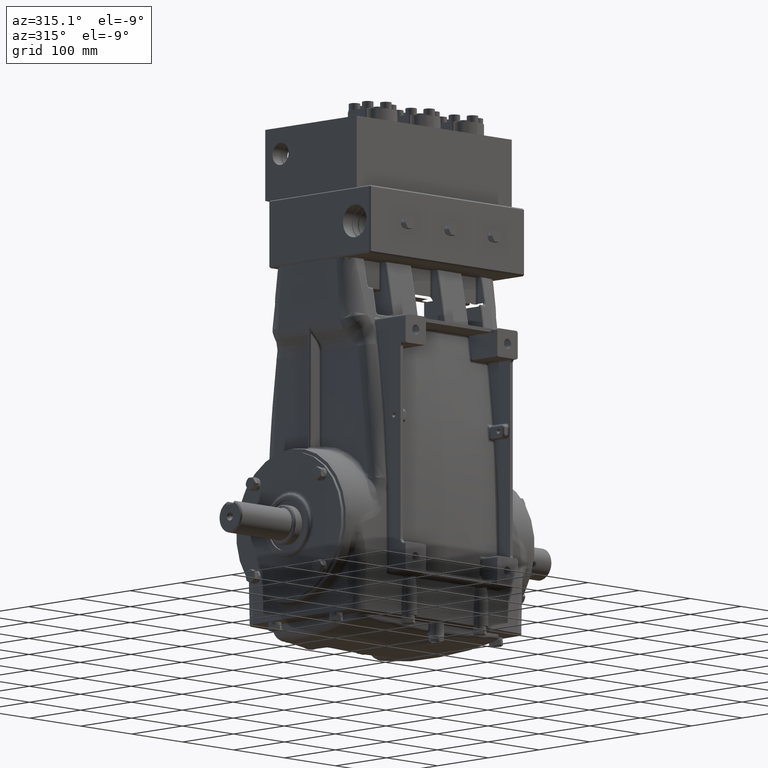
[diagram: clean part render]
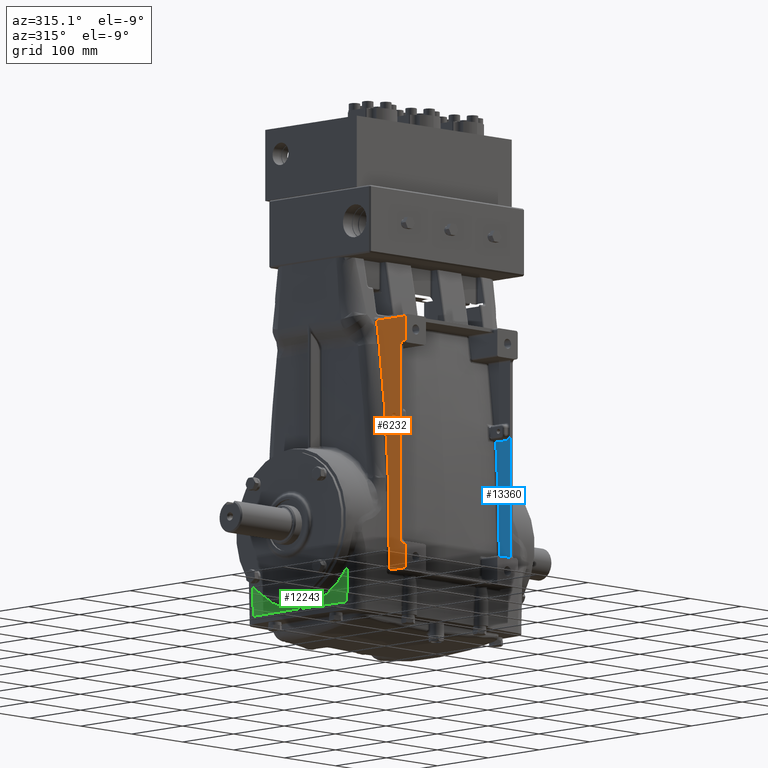
[diagram: same view with three faces highlighted in distinct colors, each labeled with its STEP entity id]
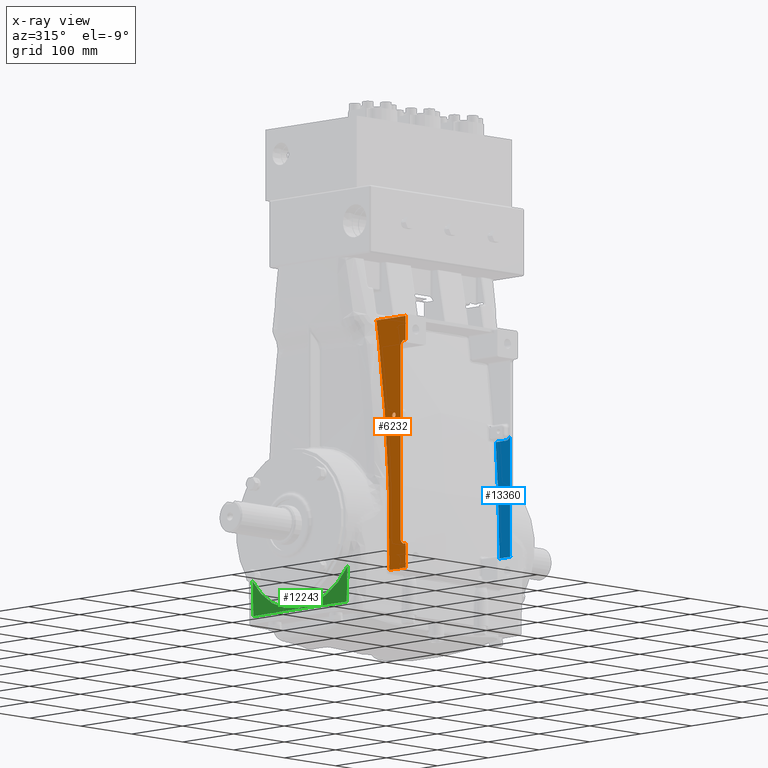
[diagram: x-ray of the same camera — body ghosted, the three highlighted faces saturated]
A machine part, auxiliary view with three faces highlighted in distinct colors.
The next image is the same camera in x-ray (body ghosted, the three faces saturated) — at least one of them is partly hidden behind the body in this view.
Their STEP definitions:

[orange] entity #6232 — the highlighted planar face has unit normal (1, 0, -0).
#286 = CARTESIAN_POINT ( 'NONE',  ( -4.330708661417315142, -3.758670633339183720, 10.58997371581670244 ) ) ;
#506 = CARTESIAN_POINT ( 'NONE',  ( -4.330708661417320471, -5.511811023622048111, 9.684108474770964037 ) ) ;
#572 = CARTESIAN_POINT ( 'NONE',  ( -4.330708661417322247, -4.597700456621135245, 1.727972093343288496 ) ) ;
#815 = CARTESIAN_POINT ( 'NONE',  ( -4.330708661417318694, -5.708661417322118403, 9.960629921259842590 ) ) ;
#1033 = DIRECTION ( 'NONE',  ( 4.625929269271485914E-16, -0.000000000000000000, 1.000000000000000000 ) ) ;
#1430 = VECTOR ( 'NONE', #66259, 39.37007874015748143 ) ;
#1734 = VERTEX_POINT ( 'NONE', #48448 ) ;
#1758 = EDGE_CURVE ( 'NONE', #16277, #56639, #74846, .T. ) ;
#1809 = CARTESIAN_POINT ( 'NONE',  ( -4.330708661417324024, -5.708661417322118403, -1.299212598425195875 ) ) ;
#2615 = VERTEX_POINT ( 'NONE', #78924 ) ;
#2658 = CARTESIAN_POINT ( 'NONE',  ( -4.330708661417317806, -3.679653842082431403, 11.11588071487851259 ) ) ;
#2874 = VERTEX_POINT ( 'NONE', #75843 ) ;
#4218 = EDGE_CURVE ( 'NONE', #5468, #15833, #62305, .T. ) ;
#4697 = EDGE_CURVE ( 'NONE', #10198, #37633, #58454, .T. ) ;
#4777 = VECTOR ( 'NONE', #1033, 39.37007874015748143 ) ;
#5468 = VERTEX_POINT ( 'NONE', #48418 ) ;
#5520 = PLANE ( 'NONE',  #57668 ) ;
#6232 = ADVANCED_FACE ( 'NONE', ( #69952, #30319 ), #5520, .F. ) ;
#6648 = CARTESIAN_POINT ( 'NONE',  ( -4.330708661417322247, -4.574199430740796934, 2.235728777375860066 ) ) ;
#6987 = EDGE_CURVE ( 'NONE', #15235, #5468, #47869, .T. ) ;
#7119 = CARTESIAN_POINT ( 'NONE',  ( -4.330708661417318694, -5.519561789034339583, 9.729161232448573671 ) ) ;
#7539 = CARTESIAN_POINT ( 'NONE',  ( -4.330708661417317806, -5.517751333018248161, 9.721740225750888698 ) ) ;
#7800 = ORIENTED_EDGE ( 'NONE', *, *, #79906, .T. ) ;
#7937 = CARTESIAN_POINT ( 'NONE',  ( -4.330708661417319583, -5.612481343199264394, 9.885936161313281900 ) ) ;
#8437 = CARTESIAN_POINT ( 'NONE',  ( -4.330708661417324024, -5.708661417322118403, -1.299212598425195875 ) ) ;
#8535 = AXIS2_PLACEMENT_3D ( 'NONE', #29075, #22876, #41886 ) ;
#8841 = CARTESIAN_POINT ( 'NONE',  ( -4.330708661417324912, -5.615046971796994413, -1.221747685589043453 ) ) ;
#9236 = CARTESIAN_POINT ( 'NONE',  ( -4.330708661417323135, -5.696671798915732055, -1.289925464463378413 ) ) ;
#10198 = VERTEX_POINT ( 'NONE', #17000 ) ;
#10798 = B_SPLINE_CURVE_WITH_KNOTS ( 'NONE', 3,
 ( #27866, #77840, #2658, #64652 ),
 .UNSPECIFIED., .F., .F.,
 ( 4, 4 ),
 ( 0.000000000000000000, 0.007073949357450777693 ),
 .UNSPECIFIED. ) ;
#11697 = CARTESIAN_POINT ( 'NONE',  ( -4.330708661417319583, -4.168985392030166715, 7.492982133599030981 ) ) ;
#12056 = CARTESIAN_POINT ( 'NONE',  ( -4.330708661417322247, -4.597700456621135245, 1.727972093343288496 ) ) ;
#12101 = CARTESIAN_POINT ( 'NONE',  ( -4.330708661417320471, -5.000000000000000000, 5.905511811023622215 ) ) ;
#12216 = B_SPLINE_CURVE_WITH_KNOTS ( 'NONE', 3,
 ( #23678, #36071, #66669, #11697, #28648, #53843, #79039, #36475 ),
 .UNSPECIFIED., .F., .F.,
 ( 4, 2, 2, 4 ),
 ( 0.000000000000000000, 0.04781237632467381926, 0.09562475264934763852, 0.1912495052986952770 ),
 .UNSPECIFIED. ) ;
#12990 = DIRECTION ( 'NONE',  ( 4.625929269271485914E-16, -0.000000000000000000, 1.000000000000000000 ) ) ;
#13793 = CARTESIAN_POINT ( 'NONE',  ( -4.330708661417324912, -4.654075012934553612, -1.910071403598017747 ) ) ;
#15235 = VERTEX_POINT ( 'NONE', #69538 ) ;
#15833 = VERTEX_POINT ( 'NONE', #61424 ) ;
#16277 = VERTEX_POINT ( 'NONE', #23340 ) ;
#16646 = CARTESIAN_POINT ( 'NONE',  ( -4.330708661417317806, -3.694105952064032472, 11.02408274776168184 ) ) ;
#17000 = CARTESIAN_POINT ( 'NONE',  ( -4.330708661417318694, -5.905511811023622215, 9.960629921259842590 ) ) ;
#18483 = CARTESIAN_POINT ( 'NONE',  ( -4.330708661417316030, -3.745837844733637123, 10.67680752492550589 ) ) ;
#18651 = CARTESIAN_POINT ( 'NONE',  ( -4.330708661417322247, -4.567744563071908459, 2.362684232270944040 ) ) ;
#18885 = CARTESIAN_POINT ( 'NONE',  ( -4.330708661417317806, -3.707756986922133624, 10.93737147724965375 ) ) ;
#19387 = ORIENTED_EDGE ( 'NONE', *, *, #60255, .T. ) ;
#19532 = CARTESIAN_POINT ( 'NONE',  ( -4.330708661417317806, -5.660474196190496521, 9.923304198069603288 ) ) ;
#19872 = B_SPLINE_CURVE_WITH_KNOTS ( 'NONE', 3,
 ( #1809, #9236, #27025, #72845, #27829, #8841, #78622, #21623, #52217, #34034, #41422, #39799, #79033, #21221, #77401, #47248 ),
 .UNSPECIFIED., .F., .F.,
 ( 4, 2, 2, 2, 2, 2, 2, 4 ),
 ( -1.414213562386258345E-05, 0.001141492621043463211, 0.002297127377710789231, 0.004608396891045378821, 0.006919666404379967543, 0.007497483782713633589, 0.008075301161047298767, 0.009230935917714627389 ),
 .UNSPECIFIED. ) ;
#20291 = LINE ( 'NONE', #50873, #62096 ) ;
#20524 = VECTOR ( 'NONE', #74036, 39.37007874015748143 ) ;
#21221 = CARTESIAN_POINT ( 'NONE',  ( -4.330708661417324024, -5.513360772546194610, -1.037883945434335820 ) ) ;
#21533 = CARTESIAN_POINT ( 'NONE',  ( -4.330708661417320471, -5.000000000000000000, 6.038385826771652809 ) ) ;
#21623 = CARTESIAN_POINT ( 'NONE',  ( -4.330708661417323135, -5.555866031770023028, -1.151722018210426413 ) ) ;
#21989 = VERTEX_POINT ( 'NONE', #21533 ) ;
#22534 = CIRCLE ( 'NONE', #46253, 0.1328740157480310657 ) ;
#22653 = EDGE_LOOP ( 'NONE', ( #7800, #70682 ) ) ;
#22876 = DIRECTION ( 'NONE',  ( 1.000000000000000000, 0.000000000000000000, -4.625929269271485914E-16 ) ) ;
#23290 = VERTEX_POINT ( 'NONE', #815 ) ;
#23340 = CARTESIAN_POINT ( 'NONE',  ( -4.330708661417324024, -5.905511811023622215, -1.299212598425191434 ) ) ;
#23678 = CARTESIAN_POINT ( 'NONE',  ( -4.330708661417318694, -3.849796325247808237, 9.982332000776853675 ) ) ;
#24122 = DIRECTION ( 'NONE',  ( -4.625929269271485914E-16, 0.000000000000000000, -1.000000000000000000 ) ) ;
#24706 = DIRECTION ( 'NONE',  ( 0.000000000000000000, -1.000000000000000000, 0.000000000000000000 ) ) ;
#25483 = CARTESIAN_POINT ( 'NONE',  ( -4.330708661417318694, -3.849796325247808237, 9.982332000776853675 ) ) ;
#25778 = CARTESIAN_POINT ( 'NONE',  ( -4.330708661417324024, -4.656901445509914694, -1.182378075778278692 ) ) ;
#25825 = CARTESIAN_POINT ( 'NONE',  ( -4.330708661417317806, -5.905511811023622215, 11.41732283464567033 ) ) ;
#26008 = DIRECTION ( 'NONE',  ( 1.000000000000000000, 0.000000000000000000, -4.625929269271485914E-16 ) ) ;
#27025 = CARTESIAN_POINT ( 'NONE',  ( -4.330708661417322247, -5.684592308236755542, -1.280568199181267408 ) ) ;
#27441 = VERTEX_POINT ( 'NONE', #37412 ) ;
#27829 = CARTESIAN_POINT ( 'NONE',  ( -4.330708661417324024, -5.649158604997146504, -1.251872600408570513 ) ) ;
#27866 = CARTESIAN_POINT ( 'NONE',  ( -4.330708661417317806, -3.650293332670990765, 11.29921259842519810 ) ) ;
#28648 = CARTESIAN_POINT ( 'NONE',  ( -4.330708661417319583, -4.235753434905722870, 6.869152594603407103 ) ) ;
#29075 = CARTESIAN_POINT ( 'NONE',  ( -4.330708661417320471, -5.000000000000000000, 5.905511811023622215 ) ) ;
#29127 = ORIENTED_EDGE ( 'NONE', *, *, #77876, .T. ) ;
#29147 = CARTESIAN_POINT ( 'NONE',  ( -4.330708661417318694, -3.849796325247808237, 9.982332000776853675 ) ) ;
#29151 = ORIENTED_EDGE ( 'NONE', *, *, #4697, .T. ) ;
#29517 = DIRECTION ( 'NONE',  ( -0.000000000000000000, 1.000000000000000000, -0.000000000000000000 ) ) ;
#29816 = B_SPLINE_CURVE_WITH_KNOTS ( 'NONE', 3,
 ( #45523, #506, #64128, #7539, #7119, #43882, #77325, #69916, #45119, #7937, #19532, #51724 ),
 .UNSPECIFIED., .F., .F.,
 ( 4, 2, 2, 2, 2, 4 ),
 ( 2.281535328170445040E-15, 0.001161146787051145447, 0.001741720180575610224, 0.002322293574100075218, 0.004644587148197994175, 0.009289174296393882396 ),
 .UNSPECIFIED. ) ;
#30319 = FACE_OUTER_BOUND ( 'NONE', #55553, .T. ) ;
#30321 = B_SPLINE_CURVE_WITH_KNOTS ( 'NONE', 3,
 ( #62860, #18651, #6648, #43831, #63262, #12056 ),
 .UNSPECIFIED., .F., .F.,
 ( 4, 2, 4 ),
 ( 0.000000000000000000, 0.009686476643616477242, 0.01937295328723295448 ),
 .UNSPECIFIED. ) ;
#31050 = CARTESIAN_POINT ( 'NONE',  ( -4.330708661417317806, -3.650293332670990765, 11.29921259842519810 ) ) ;
#31678 = CARTESIAN_POINT ( 'NONE',  ( -4.330708661417317806, -3.694105952064032472, 11.02408274776168184 ) ) ;
#32781 = LINE ( 'NONE', #69573, #37535 ) ;
#34034 = CARTESIAN_POINT ( 'NONE',  ( -4.330708661417324024, -5.526354792053539633, -1.089803178924994453 ) ) ;
#34472 = EDGE_CURVE ( 'NONE', #57312, #56209, #54445, .T. ) ;
#35718 = CARTESIAN_POINT ( 'NONE',  ( -4.330708661417317806, 19685.03937007874265, 11.29921259842519810 ) ) ;
#36071 = CARTESIAN_POINT ( 'NONE',  ( -4.330708661417319583, -3.938904280000039559, 9.361209502195631416 ) ) ;
#36475 = CARTESIAN_POINT ( 'NONE',  ( -4.330708661417322247, -4.561810661030907710, 2.489665095192299393 ) ) ;
#37272 = DIRECTION ( 'NONE',  ( 0.000000000000000000, 0.000000000000000000, -1.000000000000000000 ) ) ;
#37412 = CARTESIAN_POINT ( 'NONE',  ( -4.330708661417324024, -5.511811023621509875, -1.007236280035602061 ) ) ;
#37437 = CARTESIAN_POINT ( 'NONE',  ( -4.330708661417317806, -5.905511811023622215, 11.29921259842519810 ) ) ;
#37535 = VECTOR ( 'NONE', #12990, 39.37007874015748143 ) ;
#37633 = VERTEX_POINT ( 'NONE', #37437 ) ;
#38217 = EDGE_CURVE ( 'NONE', #27441, #1734, #32781, .T. ) ;
#39598 = ORIENTED_EDGE ( 'NONE', *, *, #6987, .T. ) ;
#39799 = CARTESIAN_POINT ( 'NONE',  ( -4.330708661417323135, -5.519561899254895820, -1.067744340551026516 ) ) ;
#40335 = ORIENTED_EDGE ( 'NONE', *, *, #69548, .T. ) ;
#41422 = CARTESIAN_POINT ( 'NONE',  ( -4.330708661417324024, -5.523857557543355057, -1.082472261973262961 ) ) ;
#41679 = VECTOR ( 'NONE', #24706, 39.37007874015748143 ) ;
#41886 = DIRECTION ( 'NONE',  ( 0.000000000000000000, 0.000000000000000000, -1.000000000000000000 ) ) ;
#42836 = CIRCLE ( 'NONE', #8535, 0.1328740157480310657 ) ;
#43430 = CARTESIAN_POINT ( 'NONE',  ( -4.330708661417324024, 19685.03937007874265, -1.299212598425195875 ) ) ;
#43611 = VECTOR ( 'NONE', #29517, 39.37007874015748143 ) ;
#43831 = CARTESIAN_POINT ( 'NONE',  ( -4.330708661417322247, -4.586823144275528286, 1.981804329023327815 ) ) ;
#43882 = CARTESIAN_POINT ( 'NONE',  ( -4.330708661417318694, -5.523857386598908015, 9.743889051750500130 ) ) ;
#45119 = CARTESIAN_POINT ( 'NONE',  ( -4.330708661417318694, -5.555865420700115465, 9.813138377378511024 ) ) ;
#45187 = CARTESIAN_POINT ( 'NONE',  ( -4.330708661417322247, -4.625092016339777068, 1.000649448202308278 ) ) ;
#45523 = CARTESIAN_POINT ( 'NONE',  ( -4.330708661417318694, -5.511811023621509875, 9.668653602870250552 ) ) ;
#46253 = AXIS2_PLACEMENT_3D ( 'NONE', #12101, #26008, #37272 ) ;
#47248 = CARTESIAN_POINT ( 'NONE',  ( -4.330708661417324024, -5.511811023621509875, -1.007236280035602061 ) ) ;
#47258 = CARTESIAN_POINT ( 'NONE',  ( -4.330708661417317806, -5.905511811023622215, 11.41732283464567033 ) ) ;
#47773 = ORIENTED_EDGE ( 'NONE', *, *, #34472, .T. ) ;
#47869 = B_SPLINE_CURVE_WITH_KNOTS ( 'NONE', 3,
 ( #572, #45187, #50572, #25778, #13793, #75765 ),
 .UNSPECIFIED., .F., .F.,
 ( 4, 2, 4 ),
 ( 0.000000000000000000, 0.05545994499391303928, 0.1109198899878260786 ),
 .UNSPECIFIED. ) ;
#48418 = CARTESIAN_POINT ( 'NONE',  ( -4.330708661417324912, -4.641171733027025681, -2.637795275590551380 ) ) ;
#48448 = CARTESIAN_POINT ( 'NONE',  ( -4.330708661417318694, -5.511811023621509875, 9.668653602870250552 ) ) ;
#48520 = ORIENTED_EDGE ( 'NONE', *, *, #74236, .T. ) ;
#49586 = EDGE_CURVE ( 'NONE', #15833, #16277, #79456, .T. ) ;
#49682 = EDGE_CURVE ( 'NONE', #21989, #2874, #22534, .T. ) ;
#50145 = ORIENTED_EDGE ( 'NONE', *, *, #38217, .T. ) ;
#50288 = CARTESIAN_POINT ( 'NONE',  ( -4.330708661417316030, -3.797914805191444643, 10.32958397861387922 ) ) ;
#50572 = CARTESIAN_POINT ( 'NONE',  ( -4.330708661417323135, -4.642412221602565836, 0.2729475266938742872 ) ) ;
#50873 = CARTESIAN_POINT ( 'NONE',  ( -4.330708661417318694, 19685.03937007874265, 9.960629921259842590 ) ) ;
#51288 = DIRECTION ( 'NONE',  ( 0.000000000000000000, -1.000000000000000000, 0.000000000000000000 ) ) ;
#51628 = ORIENTED_EDGE ( 'NONE', *, *, #63009, .T. ) ;
#51724 = CARTESIAN_POINT ( 'NONE',  ( -4.330708661417318694, -5.708661417322118403, 9.960629921259842590 ) ) ;
#51840 = VERTEX_POINT ( 'NONE', #31050 ) ;
#52217 = CARTESIAN_POINT ( 'NONE',  ( -4.330708661417323135, -5.540231583407777549, -1.125535796228187779 ) ) ;
#53843 = CARTESIAN_POINT ( 'NONE',  ( -4.330708661417322247, -4.413781653075156797, 4.995237787766293458 ) ) ;
#54445 = B_SPLINE_CURVE_WITH_KNOTS ( 'NONE', 3,
 ( #31678, #18885, #75078, #18483, #286, #50288, #69284, #25483 ),
 .UNSPECIFIED., .F., .F.,
 ( 4, 2, 2, 4 ),
 ( 0.000000000000000000, 0.006688590237758891902, 0.01337718047551778380, 0.02675436095103556761 ),
 .UNSPECIFIED. ) ;
#55553 = EDGE_LOOP ( 'NONE', ( #60034, #19387, #47773, #51628, #61883, #39598, #69648, #58782, #57320, #29127, #50145, #40335, #48520, #29151 ) ) ;
#55918 = CARTESIAN_POINT ( 'NONE',  ( -4.330708661417317806, 19685.03937007874265, 11.41732283464567033 ) ) ;
#56209 = VERTEX_POINT ( 'NONE', #29147 ) ;
#56639 = VERTEX_POINT ( 'NONE', #8437 ) ;
#57312 = VERTEX_POINT ( 'NONE', #16646 ) ;
#57318 = CARTESIAN_POINT ( 'NONE',  ( -4.330708661417324912, 19685.03937007874265, -2.637795275590551380 ) ) ;
#57320 = ORIENTED_EDGE ( 'NONE', *, *, #1758, .T. ) ;
#57668 = AXIS2_PLACEMENT_3D ( 'NONE', #55918, #80732, #24122 ) ;
#58454 = LINE ( 'NONE', #25825, #4777 ) ;
#58782 = ORIENTED_EDGE ( 'NONE', *, *, #49586, .T. ) ;
#60034 = ORIENTED_EDGE ( 'NONE', *, *, #72554, .T. ) ;
#60255 = EDGE_CURVE ( 'NONE', #51840, #57312, #10798, .T. ) ;
#61424 = CARTESIAN_POINT ( 'NONE',  ( -4.330708661417324912, -5.905511811023622215, -2.637795275590546940 ) ) ;
#61883 = ORIENTED_EDGE ( 'NONE', *, *, #81402, .T. ) ;
#62096 = VECTOR ( 'NONE', #51288, 39.37007874015748143 ) ;
#62305 = LINE ( 'NONE', #57318, #41679 ) ;
#62860 = CARTESIAN_POINT ( 'NONE',  ( -4.330708661417322247, -4.561810661030907710, 2.489665095192299393 ) ) ;
#63009 = EDGE_CURVE ( 'NONE', #56209, #2615, #12216, .T. ) ;
#63262 = CARTESIAN_POINT ( 'NONE',  ( -4.330708661417322247, -4.592923636427223677, 1.854832446781617517 ) ) ;
#64128 = CARTESIAN_POINT ( 'NONE',  ( -4.330708661417316918, -5.513360750186181214, 9.699301047257321784 ) ) ;
#64652 = CARTESIAN_POINT ( 'NONE',  ( -4.330708661417317806, -3.694105952064032472, 11.02408274776168184 ) ) ;
#66259 = DIRECTION ( 'NONE',  ( 4.625929269271485914E-16, -0.000000000000000000, 1.000000000000000000 ) ) ;
#66669 = CARTESIAN_POINT ( 'NONE',  ( -4.330708661417319583, -4.020560686727725930, 8.739019611534521559 ) ) ;
#67133 = LINE ( 'NONE', #35718, #43611 ) ;
#69284 = CARTESIAN_POINT ( 'NONE',  ( -4.330708661417317806, -3.824865578151133150, 10.15610846772178633 ) ) ;
#69538 = CARTESIAN_POINT ( 'NONE',  ( -4.330708661417322247, -4.597700456621135245, 1.727972093343288496 ) ) ;
#69548 = EDGE_CURVE ( 'NONE', #1734, #23290, #29816, .T. ) ;
#69573 = CARTESIAN_POINT ( 'NONE',  ( -4.330708661417317806, -5.511811023621509875, 11.41732283464567033 ) ) ;
#69648 = ORIENTED_EDGE ( 'NONE', *, *, #4218, .T. ) ;
#69916 = CARTESIAN_POINT ( 'NONE',  ( -4.330708661417319583, -5.540231194186154617, 9.786952323660477404 ) ) ;
#69952 = FACE_BOUND ( 'NONE', #22653, .T. ) ;
#70682 = ORIENTED_EDGE ( 'NONE', *, *, #49682, .T. ) ;
#72554 = EDGE_CURVE ( 'NONE', #37633, #51840, #67133, .T. ) ;
#72845 = CARTESIAN_POINT ( 'NONE',  ( -4.330708661417323135, -5.660857683331290247, -1.261559054153000847 ) ) ;
#74036 = DIRECTION ( 'NONE',  ( 0.000000000000000000, 1.000000000000000000, 0.000000000000000000 ) ) ;
#74236 = EDGE_CURVE ( 'NONE', #23290, #10198, #20291, .T. ) ;
#74846 = LINE ( 'NONE', #43430, #20524 ) ;
#75078 = CARTESIAN_POINT ( 'NONE',  ( -4.330708661417317806, -3.720373892604141641, 10.85050533803187101 ) ) ;
#75765 = CARTESIAN_POINT ( 'NONE',  ( -4.330708661417324912, -4.641171733027025681, -2.637795275590551380 ) ) ;
#75843 = CARTESIAN_POINT ( 'NONE',  ( -4.330708661417320471, -5.000000000000000000, 5.772637795275590733 ) ) ;
#77325 = CARTESIAN_POINT ( 'NONE',  ( -4.330708661417319583, -5.526354586598208662, 9.751219921001139213 ) ) ;
#77401 = CARTESIAN_POINT ( 'NONE',  ( -4.330708661417325800, -5.511811023622048999, -1.022691264334465666 ) ) ;
#77840 = CARTESIAN_POINT ( 'NONE',  ( -4.330708661417317806, -3.665054532830104073, 11.20755954673438559 ) ) ;
#77876 = EDGE_CURVE ( 'NONE', #56639, #27441, #19872, .T. ) ;
#78622 = CARTESIAN_POINT ( 'NONE',  ( -4.330708661417325800, -5.593610404961347982, -1.200254064566543377 ) ) ;
#78924 = CARTESIAN_POINT ( 'NONE',  ( -4.330708661417322247, -4.561810661030907710, 2.489665095192299393 ) ) ;
#79033 = CARTESIAN_POINT ( 'NONE',  ( -4.330708661417324912, -5.517751417632301703, -1.060323281988302835 ) ) ;
#79039 = CARTESIAN_POINT ( 'NONE',  ( -4.330708661417320471, -4.502726479363019507, 3.743283194850691942 ) ) ;
#79456 = LINE ( 'NONE', #47258, #1430 ) ;
#79906 = EDGE_CURVE ( 'NONE', #2874, #21989, #42836, .T. ) ;
#80732 = DIRECTION ( 'NONE',  ( 1.000000000000000000, 0.000000000000000000, -4.625929269271485914E-16 ) ) ;
#81402 = EDGE_CURVE ( 'NONE', #2615, #15235, #30321, .T. ) ;

[blue] entity #13360 — the highlighted planar face has unit normal (1, 0, 0).
#1534 = CARTESIAN_POINT ( 'NONE',  ( 4.133858267716528090, -4.398266082331344862, 5.413385826771651033 ) ) ;
#5074 = ORIENTED_EDGE ( 'NONE', *, *, #57983, .F. ) ;
#6503 = DIRECTION ( 'NONE',  ( -1.000000000000000000, -0.000000000000000000, -9.912705577010326782E-17 ) ) ;
#7753 = VERTEX_POINT ( 'NONE', #8112 ) ;
#8043 = CARTESIAN_POINT ( 'NONE',  ( 4.133858267716531643, -5.708661417322834275, -0.9842519685039363697 ) ) ;
#8080 = FACE_OUTER_BOUND ( 'NONE', #48453, .T. ) ;
#8112 = CARTESIAN_POINT ( 'NONE',  ( 4.133858267716530754, -5.196850393700787052, 5.413385826771651921 ) ) ;
#8810 = VECTOR ( 'NONE', #38163, 39.37007874015748143 ) ;
#9824 = AXIS2_PLACEMENT_3D ( 'NONE', #8043, #6503, #75505 ) ;
#10605 = CARTESIAN_POINT ( 'NONE',  ( 4.133858267716530754, -4.483926452850572453, 4.335829223324402903 ) ) ;
#11455 = VERTEX_POINT ( 'NONE', #37365 ) ;
#11478 = CARTESIAN_POINT ( 'NONE',  ( 4.133858267716530754, -5.196850393700787940, 5.728346456692912092 ) ) ;
#13360 = ADVANCED_FACE ( 'NONE', ( #8080 ), #57254, .F. ) ;
#14610 = DIRECTION ( 'NONE',  ( 1.071252174045097487E-31, -1.000000000000000000, -1.080685959774250839E-15 ) ) ;
#16815 = CARTESIAN_POINT ( 'NONE',  ( 4.133858267716532531, -4.581917038915694462, 2.717646376400984387 ) ) ;
#18125 = ORIENTED_EDGE ( 'NONE', *, *, #29452, .F. ) ;
#18769 = CARTESIAN_POINT ( 'NONE',  ( 4.133858267716531643, -4.554305336757968448, -1.062992125984251413 ) ) ;
#19087 = CIRCLE ( 'NONE', #9824, 0.1968503937007874405 ) ;
#19396 = CIRCLE ( 'NONE', #20675, 0.3149606299212601157 ) ;
#20675 = AXIS2_PLACEMENT_3D ( 'NONE', #11478, #67248, #29235 ) ;
#23647 = ORIENTED_EDGE ( 'NONE', *, *, #70568, .F. ) ;
#24077 = VERTEX_POINT ( 'NONE', #1534 ) ;
#24635 = ORIENTED_EDGE ( 'NONE', *, *, #67725, .F. ) ;
#24824 = B_SPLINE_CURVE_WITH_KNOTS ( 'NONE', 3,
 ( #80410, #74200, #73397, #16815, #67200, #10605, #35791, #60996 ),
 .UNSPECIFIED., .F., .F.,
 ( 4, 2, 2, 4 ),
 ( 0.000000000000000000, 0.08237949735826280429, 0.1235692460373942064, 0.1647589947165256086 ),
 .UNSPECIFIED. ) ;
#25363 = LINE ( 'NONE', #18769, #8810 ) ;
#25856 = CARTESIAN_POINT ( 'NONE',  ( 4.133858267716530754, 19685.03937007874265, 9.842519685039370358 ) ) ;
#29235 = DIRECTION ( 'NONE',  ( 0.000000000000000000, 0.000000000000000000, 1.000000000000000000 ) ) ;
#29452 = EDGE_CURVE ( 'NONE', #35449, #77551, #25363, .T. ) ;
#31774 = LINE ( 'NONE', #52425, #61899 ) ;
#32089 = CARTESIAN_POINT ( 'NONE',  ( 4.133858267716531643, -4.679230222444994425, -1.062992125984251413 ) ) ;
#35449 = VERTEX_POINT ( 'NONE', #61890 ) ;
#35791 = CARTESIAN_POINT ( 'NONE',  ( 4.133858267716529866, -4.443854526751715106, 4.874962370991393179 ) ) ;
#37365 = CARTESIAN_POINT ( 'NONE',  ( 4.133858267716530754, -5.511811023622047223, 5.728346456692913868 ) ) ;
#38163 = DIRECTION ( 'NONE',  ( -0.000000000000000000, 1.000000000000000000, -0.000000000000000000 ) ) ;
#45244 = EDGE_CURVE ( 'NONE', #67334, #11455, #31774, .T. ) ;
#48453 = EDGE_LOOP ( 'NONE', ( #23647, #18125, #54991, #61011, #5074, #24635 ) ) ;
#52425 = CARTESIAN_POINT ( 'NONE',  ( 4.133858267716530754, -5.511811023622047223, 9.842519685039370358 ) ) ;
#54991 = ORIENTED_EDGE ( 'NONE', *, *, #79825, .F. ) ;
#56069 = AXIS2_PLACEMENT_3D ( 'NONE', #25856, #70884, #56837 ) ;
#56837 = DIRECTION ( 'NONE',  ( -9.912705577010326782E-17, 0.000000000000000000, 1.000000000000000000 ) ) ;
#57254 = PLANE ( 'NONE',  #56069 ) ;
#57681 = VECTOR ( 'NONE', #14610, 39.37007874015748143 ) ;
#57983 = EDGE_CURVE ( 'NONE', #7753, #11455, #19396, .T. ) ;
#60996 = CARTESIAN_POINT ( 'NONE',  ( 4.133858267716528090, -4.398266082331344862, 5.413385826771651033 ) ) ;
#61011 = ORIENTED_EDGE ( 'NONE', *, *, #45244, .T. ) ;
#61890 = CARTESIAN_POINT ( 'NONE',  ( 4.133858267716531643, -5.528245051379690800, -1.062992125984251413 ) ) ;
#61899 = VECTOR ( 'NONE', #77191, 39.37007874015748143 ) ;
#67200 = CARTESIAN_POINT ( 'NONE',  ( 4.133858267716531643, -4.552955480473088734, 3.257178203712277842 ) ) ;
#67248 = DIRECTION ( 'NONE',  ( -1.000000000000000000, -0.000000000000000000, -9.912705577010326782E-17 ) ) ;
#67334 = VERTEX_POINT ( 'NONE', #68766 ) ;
#67725 = EDGE_CURVE ( 'NONE', #24077, #7753, #73561, .T. ) ;
#68766 = CARTESIAN_POINT ( 'NONE',  ( 4.133858267716531643, -5.511811023622047223, -0.9842519685039357036 ) ) ;
#70568 = EDGE_CURVE ( 'NONE', #77551, #24077, #24824, .T. ) ;
#70884 = DIRECTION ( 'NONE',  ( 1.000000000000000000, 0.000000000000000000, 9.912705577010326782E-17 ) ) ;
#73397 = CARTESIAN_POINT ( 'NONE',  ( 4.133858267716531643, -4.652159717073764966, 1.098432568708993085 ) ) ;
#73561 = LINE ( 'NONE', #80173, #57681 ) ;
#74200 = CARTESIAN_POINT ( 'NONE',  ( 4.133858267716532531, -4.676805926804965985, 0.01810102468415818178 ) ) ;
#75505 = DIRECTION ( 'NONE',  ( 0.000000000000000000, 0.000000000000000000, 1.000000000000000000 ) ) ;
#77191 = DIRECTION ( 'NONE',  ( -9.912705577010326782E-17, 0.000000000000000000, 1.000000000000000000 ) ) ;
#77551 = VERTEX_POINT ( 'NONE', #32089 ) ;
#79825 = EDGE_CURVE ( 'NONE', #67334, #35449, #19087, .T. ) ;
#80173 = CARTESIAN_POINT ( 'NONE',  ( 4.133858267716530754, 19685.03937007874265, 5.413385826792930899 ) ) ;
#80410 = CARTESIAN_POINT ( 'NONE',  ( 4.133858267716531643, -4.679230222444994425, -1.062992125984251413 ) ) ;

[green] entity #12243 — the highlighted cylindrical surface (partial cylindrical patch) has radius 1800 mm, axis along (0, 0, 1).
#280 = B_SPLINE_CURVE_WITH_KNOTS ( 'NONE', 3,
 ( #74020, #55413, #11644, #5815 ),
 .UNSPECIFIED., .F., .F.,
 ( 4, 4 ),
 ( 0.1476764422957192457, 1.000000000000000000 ),
 .UNSPECIFIED. ) ;
#987 = AXIS2_PLACEMENT_3D ( 'NONE', #32681, #26091, #20298 ) ;
#2449 = CARTESIAN_POINT ( 'NONE',  ( -6.633944655990023698, 2.890430876630879720, -3.435850484578789832 ) ) ;
#5380 = CARTESIAN_POINT ( 'NONE',  ( -6.636782478062320578, -2.823250638151045599, -3.495771947018678549 ) ) ;
#5778 = CARTESIAN_POINT ( 'NONE',  ( -6.671931910372730812, -1.753845327131073661, -4.148528325171081832 ) ) ;
#5815 = CARTESIAN_POINT ( 'NONE',  ( -6.600559661187499039, 3.616763065107670982, -4.527559055118112852 ) ) ;
#6203 = CARTESIAN_POINT ( 'NONE',  ( -6.616931262319254436, -3.281299155785907029, -3.066358392917778453 ) ) ;
#7833 = CARTESIAN_POINT ( 'NONE',  ( -6.691881638246650610, 0.4485539889953615300, -4.473275288144365369 ) ) ;
#11644 = CARTESIAN_POINT ( 'NONE',  ( -6.599122452292853325, 3.644886753555404368, -3.846459550180030718 ) ) ;
#11999 = CARTESIAN_POINT ( 'NONE',  ( -6.658389813989451511, -2.212374567969489725, -3.907192623521580366 ) ) ;
#12243 = ADVANCED_FACE ( 'NONE', ( #78735 ), #15953, .T. ) ;
#12820 = CARTESIAN_POINT ( 'NONE',  ( -6.656542124496107604, -2.270491699936353580, -3.873560989539690524 ) ) ;
#13615 = CARTESIAN_POINT ( 'NONE',  ( -6.686184731714299723, 0.9775211209005532087, -4.381911245531574295 ) ) ;
#14837 = CARTESIAN_POINT ( 'NONE',  ( -6.679050774445701499, 1.411630083676309155, -4.265635364719944533 ) ) ;
#14869 = VERTEX_POINT ( 'NONE', #70042 ) ;
#15138 = CARTESIAN_POINT ( 'NONE',  ( 64.17322834645669616, 0.000000000000000000, -4.527559055118112852 ) ) ;
#15953 = CYLINDRICAL_SURFACE ( 'NONE', #73129, 70.86614173228346658 ) ;
#18205 = CARTESIAN_POINT ( 'NONE',  ( -6.650213516233011823, -2.460805876669994507, -3.756478818609134684 ) ) ;
#18289 = CARTESIAN_POINT ( 'NONE',  ( -6.599122625514547202, -3.644883432017335334, -3.846384964209359048 ) ) ;
#19008 = CARTESIAN_POINT ( 'NONE',  ( -6.624032699817067993, -3.123922288438226946, -3.225436296254069912 ) ) ;
#19815 = CARTESIAN_POINT ( 'NONE',  ( -6.688956056282599150, 0.7579092007515856322, -4.426588406912438600 ) ) ;
#20298 = DIRECTION ( 'NONE',  ( 1.000000000000000000, 0.000000000000000000, 0.000000000000000000 ) ) ;
#21039 = CARTESIAN_POINT ( 'NONE',  ( -6.692911930892883277, 0.1805261509225443706, -4.489300967467269032 ) ) ;
#21681 = VERTEX_POINT ( 'NONE', #36067 ) ;
#23789 = CARTESIAN_POINT ( 'NONE',  ( -6.600559661187499039, 3.616763065107670982, -4.527559055118112852 ) ) ;
#24389 = CARTESIAN_POINT ( 'NONE',  ( -6.608471490501445444, -3.460537887877464858, -2.866847688438010522 ) ) ;
#24485 = CARTESIAN_POINT ( 'NONE',  ( -6.597533551606669988, -3.675500699604243415, -2.579072720005474384 ) ) ;
#24625 = EDGE_LOOP ( 'NONE', ( #68075, #73173, #26328, #41771 ) ) ;
#24792 = CARTESIAN_POINT ( 'NONE',  ( -6.687515193541975655, -0.8921007063062789122, -4.403552163566772926 ) ) ;
#26017 = CARTESIAN_POINT ( 'NONE',  ( -6.692764079045010028, -0.1571806172656566025, -4.486991971817540836 ) ) ;
#26047 = EDGE_CURVE ( 'NONE', #21681, #46774, #280, .T. ) ;
#26091 = DIRECTION ( 'NONE',  ( 0.000000000000000000, 0.000000000000000000, 1.000000000000000000 ) ) ;
#26328 = ORIENTED_EDGE ( 'NONE', *, *, #26047, .T. ) ;
#26830 = CARTESIAN_POINT ( 'NONE',  ( -6.638137487941745185, 2.785995922976853834, -3.521279928180652163 ) ) ;
#27249 = CARTESIAN_POINT ( 'NONE',  ( -6.667222818364116677, 1.909774375732196550, -4.064157406173288578 ) ) ;
#27647 = CARTESIAN_POINT ( 'NONE',  ( -6.682276695350643614, 1.240220905355824854, -4.318487835948001674 ) ) ;
#27947 = DIRECTION ( 'NONE',  ( 1.000000000000000000, 0.000000000000000000, 0.000000000000000000 ) ) ;
#30181 = CARTESIAN_POINT ( 'NONE',  ( -6.661380782309463733, -2.113902566338746070, -3.960895227004944452 ) ) ;
#32190 = CARTESIAN_POINT ( 'NONE',  ( -6.657968841548926875, 2.230971441346432105, -3.900310177353936147 ) ) ;
#32612 = CARTESIAN_POINT ( 'NONE',  ( -6.690531430946744074, -0.6270305859788235514, -4.451825025479838160 ) ) ;
#32681 = CARTESIAN_POINT ( 'NONE',  ( 64.17322834645669616, 0.000000000000000000, -4.527559055118112852 ) ) ;
#33010 = CARTESIAN_POINT ( 'NONE',  ( -6.673446087091796208, 1.663067572801128380, -4.171208230279334295 ) ) ;
#34537 = DIRECTION ( 'NONE',  ( 0.000000000000000000, 0.000000000000000000, 1.000000000000000000 ) ) ;
#35232 = B_SPLINE_CURVE_WITH_KNOTS ( 'NONE', 3,
 ( #62802, #61984, #24389, #6203, #56592, #19008, #67782, #69398, #74787, #5380, #61593, #18205, #43374, #12820, #11999, #37179, #30181, #62393, #5778, #56180, #24792, #32612, #77619, #26017, #64839, #38799, #39216, #21039, #7833, #19815, #76806, #13615, #46236, #27647, #14837, #33010, #76409, #27249, #69806, #32190, #52832, #65246, #64437, #26830, #70212, #2449, #51221, #57411, #71025, #78026, #44604 ),
 .UNSPECIFIED., .F., .F.,
 ( 4, 2, 2, 2, 2, 2, 2, 1, 2, 2, 2, 1, 1, 1, 2, 2, 1, 1, 2, 2, 2, 2, 2, 2, 2, 1, 2, 2, 4 ),
 ( 0.000000000000000000, 0.06250000000000084655, 0.09375000000000129063, 0.1093750000000015127, 0.1250000000000017208, 0.1875000000000024702, 0.2187500000000029143, 0.2343750000000031086, 0.2421875000000031641, 0.2500000000000032196, 0.3750000000000032752, 0.4375000000000033862, 0.4687500000000033862, 0.4843750000000033862, 0.4921875000000033862, 0.5000000000000033307, 0.5625000000000035527, 0.5937500000000035527, 0.6093750000000035527, 0.6250000000000035527, 0.6875000000000035527, 0.7187500000000035527, 0.7500000000000034417, 0.8125000000000033307, 0.8437500000000032196, 0.8593750000000031086, 0.8671875000000029976, 0.8750000000000028866, 1.000000000000000000 ),
 .UNSPECIFIED. ) ;
#36067 = CARTESIAN_POINT ( 'NONE',  ( -6.597533741380625649, 3.675498324507858516, -2.579286611907321891 ) ) ;
#36611 = CIRCLE ( 'NONE', #987, 70.86614173228346658 ) ;
#37179 = CARTESIAN_POINT ( 'NONE',  ( -6.660190894000042050, -2.153405022458314999, -3.939580076422407373 ) ) ;
#37566 = B_SPLINE_CURVE_WITH_KNOTS ( 'NONE', 3,
 ( #73257, #18289, #79447, #24485 ),
 .UNSPECIFIED., .F., .F.,
 ( 4, 4 ),
 ( 0.000000000000000000, 0.8524183242728551324 ),
 .UNSPECIFIED. ) ;
#38799 = CARTESIAN_POINT ( 'NONE',  ( -6.692902959118117501, -0.04456093808020129138, -4.489159303277618918 ) ) ;
#39216 = CARTESIAN_POINT ( 'NONE',  ( -6.692913565096072936, -0.02192221769621619312, -4.489324403235785077 ) ) ;
#41771 = ORIENTED_EDGE ( 'NONE', *, *, #58621, .T. ) ;
#43374 = CARTESIAN_POINT ( 'NONE',  ( -6.652790185614756879, -2.385589433192009778, -3.804638813467824399 ) ) ;
#43686 = EDGE_CURVE ( 'NONE', #14869, #21681, #35232, .T. ) ;
#44604 = CARTESIAN_POINT ( 'NONE',  ( -6.597533741380625649, 3.675498324507858516, -2.579286611907321891 ) ) ;
#46236 = CARTESIAN_POINT ( 'NONE',  ( -6.685568185726811663, 1.021232928096877934, -4.371929735317634957 ) ) ;
#46774 = VERTEX_POINT ( 'NONE', #23789 ) ;
#51221 = CARTESIAN_POINT ( 'NONE',  ( -6.632534696654627027, 2.924766509274137949, -3.406676656003733594 ) ) ;
#52832 = CARTESIAN_POINT ( 'NONE',  ( -6.652920836886583089, 2.385072285712623419, -3.808161490633833246 ) ) ;
#55413 = CARTESIAN_POINT ( 'NONE',  ( -6.598106691956589387, 3.664464895632159269, -3.197031922596153652 ) ) ;
#56180 = CARTESIAN_POINT ( 'NONE',  ( -6.679587434400997559, -1.418322498659053243, -4.274803623734003466 ) ) ;
#56592 = CARTESIAN_POINT ( 'NONE',  ( -6.619769982157017729, -3.219550288217930767, -3.131066706811822087 ) ) ;
#57411 = CARTESIAN_POINT ( 'NONE',  ( -6.631825469120407490, 2.941884665042206581, -3.391910395547730772 ) ) ;
#58621 = EDGE_CURVE ( 'NONE', #46774, #68419, #36611, .T. ) ;
#61593 = CARTESIAN_POINT ( 'NONE',  ( -6.642300750145738064, -2.681909407448425320, -3.605363201600731760 ) ) ;
#61984 = CARTESIAN_POINT ( 'NONE',  ( -6.602907845162449441, -3.572019867849649088, -2.726659535054650974 ) ) ;
#62393 = CARTESIAN_POINT ( 'NONE',  ( -6.661968078017183714, -2.094132886593160325, -3.971374858397297647 ) ) ;
#62802 = CARTESIAN_POINT ( 'NONE',  ( -6.597533551606669988, -3.675500699604243415, -2.579072720005474384 ) ) ;
#64437 = CARTESIAN_POINT ( 'NONE',  ( -6.642271624794612528, 2.679561573253520734, -3.603780512809889203 ) ) ;
#64839 = CARTESIAN_POINT ( 'NONE',  ( -6.692860284129629633, -0.08963313035185445365, -4.488493638293628685 ) ) ;
#65246 = CARTESIAN_POINT ( 'NONE',  ( -6.644980126153919642, 2.607081938153634315, -3.656549390964519475 ) ) ;
#67782 = CARTESIAN_POINT ( 'NONE',  ( -6.625454362759167992, -3.091545505973724683, -3.256444012501682028 ) ) ;
#68075 = ORIENTED_EDGE ( 'NONE', *, *, #77916, .T. ) ;
#68419 = VERTEX_POINT ( 'NONE', #74891 ) ;
#69398 = CARTESIAN_POINT ( 'NONE',  ( -6.628295085602504244, -3.025790256329711436, -3.317561817863967644 ) ) ;
#69806 = CARTESIAN_POINT ( 'NONE',  ( -6.664993451844161143, 1.990677682187436348, -4.025144137844937298 ) ) ;
#70042 = CARTESIAN_POINT ( 'NONE',  ( -6.597533551606669988, -3.675500699604243415, -2.579072720005474384 ) ) ;
#70212 = CARTESIAN_POINT ( 'NONE',  ( -6.636052559509638904, 2.838641823629540983, -3.479192819016713401 ) ) ;
#71025 = CARTESIAN_POINT ( 'NONE',  ( -6.619796950582152562, 3.229726570575188749, -3.139868794304573107 ) ) ;
#73129 = AXIS2_PLACEMENT_3D ( 'NONE', #15138, #34537, #27947 ) ;
#73173 = ORIENTED_EDGE ( 'NONE', *, *, #43686, .T. ) ;
#73257 = CARTESIAN_POINT ( 'NONE',  ( -6.600560107624472650, -3.616754329098800458, -4.527559055118112852 ) ) ;
#74020 = CARTESIAN_POINT ( 'NONE',  ( -6.597533741380625649, 3.675498324507858516, -2.579286611907321891 ) ) ;
#74787 = CARTESIAN_POINT ( 'NONE',  ( -6.629716607460721889, -2.992352868942496080, -3.347723491403883145 ) ) ;
#74891 = CARTESIAN_POINT ( 'NONE',  ( -6.600560107624472650, -3.616754329098800458, -4.527559055118112852 ) ) ;
#76409 = CARTESIAN_POINT ( 'NONE',  ( -6.671450167370870155, 1.745934040559602662, -4.137207780866044793 ) ) ;
#76806 = CARTESIAN_POINT ( 'NONE',  ( -6.687340906428795861, 0.8897721515629178901, -4.400581831665498100 ) ) ;
#77619 = CARTESIAN_POINT ( 'NONE',  ( -6.692315469045437837, -0.3143655965173596245, -4.479965900372608445 ) ) ;
#77916 = EDGE_CURVE ( 'NONE', #68419, #14869, #37566, .T. ) ;
#78026 = CARTESIAN_POINT ( 'NONE',  ( -6.608278497091743198, 3.468609442832499834, -2.873936169408513042 ) ) ;
#78735 = FACE_OUTER_BOUND ( 'NONE', #24625, .T. ) ;
#79447 = CARTESIAN_POINT ( 'NONE',  ( -6.598106697237306584, -3.664464826141709430, -3.196889512615546103 ) ) ;